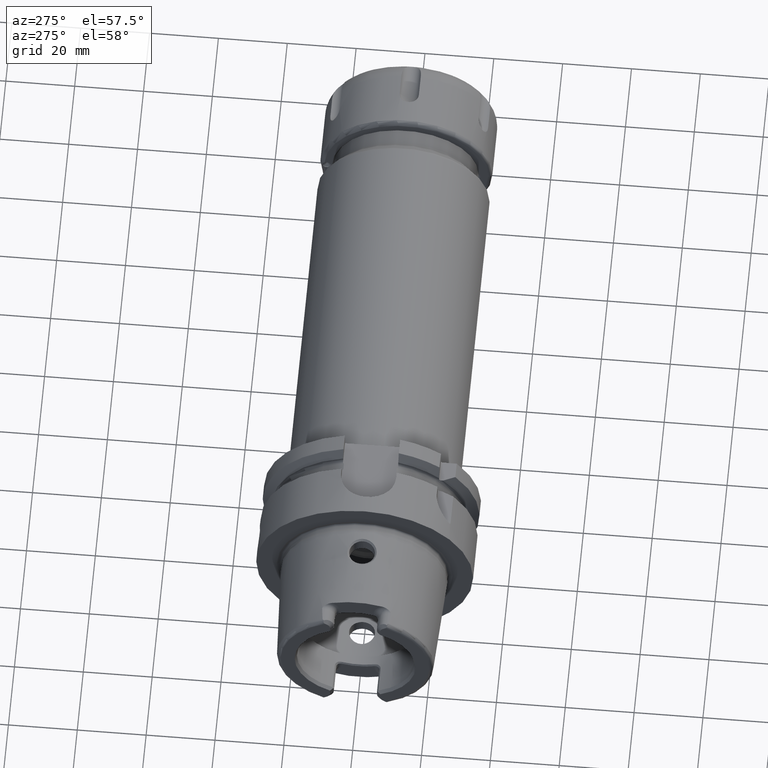
[diagram: clean part render]
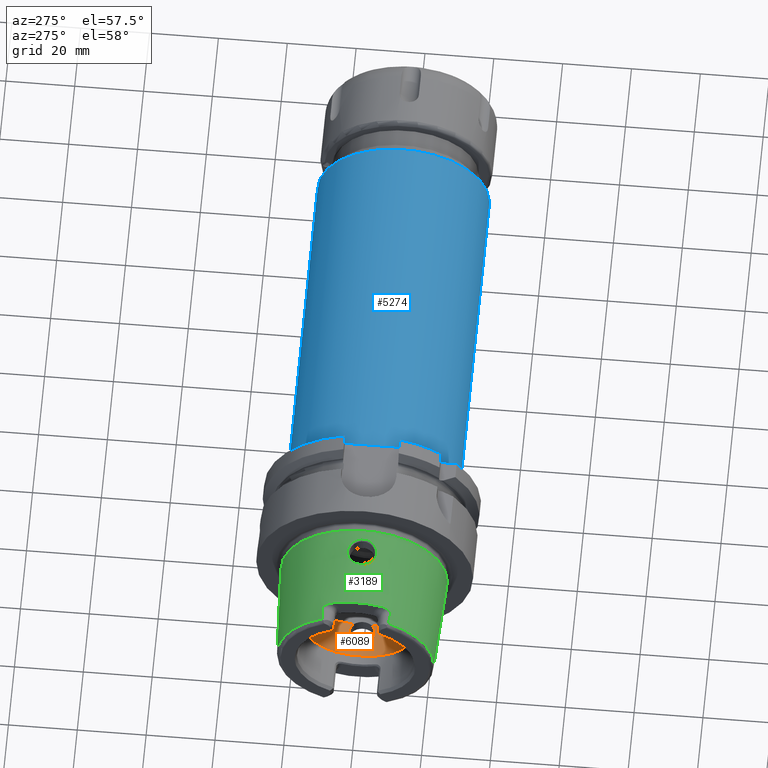
[diagram: same view with three faces highlighted in distinct colors, each labeled with its STEP entity id]
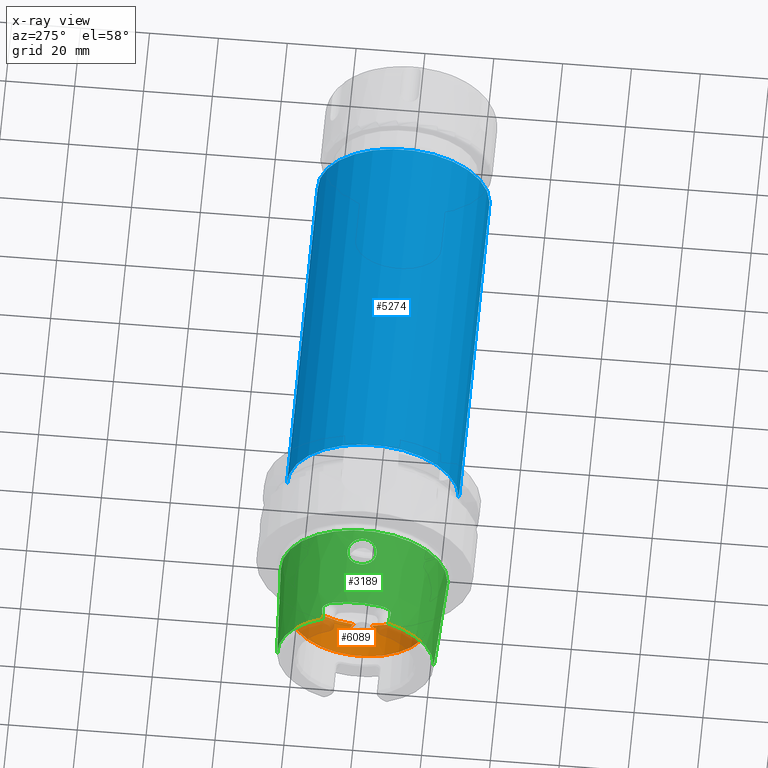
[diagram: x-ray of the same camera — body ghosted, the three highlighted faces saturated]
A machine part, auxiliary view with three faces highlighted in distinct colors.
The next image is the same camera in x-ray (body ghosted, the three faces saturated) — at least one of them is partly hidden behind the body in this view.
Their STEP definitions:

[orange] entity #6089 — the highlighted cylindrical surface (partial cylindrical patch) has radius 20 mm, axis along (1, 0, 0).
#2361=CARTESIAN_POINT('',(-1.275E1,0.E0,-2.E1));
#2362=CARTESIAN_POINT('',(-1.275E1,1.970797777845E-1,-2.E1));
#2363=CARTESIAN_POINT('',(-1.271933909344E1,5.855820587090E-1,
-1.999421722836E1));
#2364=CARTESIAN_POINT('',(-1.258308604776E1,1.156988201512E0,
-1.996912456378E1));
#2365=CARTESIAN_POINT('',(-1.236036877994E1,1.698340885752E0,
-1.993006069771E1));
#2366=CARTESIAN_POINT('',(-1.205588954782E1,2.199795991820E0,
-1.988058916012E1));
#2367=CARTESIAN_POINT('',(-1.167538777807E1,2.649620270025E0,
-1.982521080355E1));
#2368=CARTESIAN_POINT('',(-1.122923157921E1,3.034483606922E0,
-1.976949737947E1));
#2369=CARTESIAN_POINT('',(-1.073042246945E1,3.344039011522E0,
-1.971907966661E1));
#2370=CARTESIAN_POINT('',(-1.018735452757E1,3.573605383178E0,
-1.967844161215E1));
#2371=CARTESIAN_POINT('',(-9.606410769133E0,3.716516435875E0,
-1.965172086194E1));
#2372=CARTESIAN_POINT('',(-9.030535729406E0,3.763361658231E0,
-1.964272645946E1));
#2373=CARTESIAN_POINT('',(-8.506781906634E0,3.728806167728E0,
-1.964936056965E1));
#2374=CARTESIAN_POINT('',(-8.021198772650E0,3.630984566241E0,
-1.966777436361E1));
#2375=CARTESIAN_POINT('',(-7.558768926129E0,3.473542575992E0,
-1.969635625599E1));
#2376=CARTESIAN_POINT('',(-7.115695543339E0,3.254813817759E0,
-1.973391032126E1));
#2377=CARTESIAN_POINT('',(-6.705028812647E0,2.979233365007E0,
-1.977763044789E1));
#2378=CARTESIAN_POINT('',(-6.460595531496E0,2.764184924848E0,
-1.980840609324E1));
#2379=CARTESIAN_POINT('',(-6.344997998398E0,2.648294615690E0,
-1.982388800484E1));
#2381=CARTESIAN_POINT('',(-6.344997998398E0,-2.648294615690E0,
-1.982388800484E1));
#2382=CARTESIAN_POINT('',(-6.462044697935E0,-2.765637761618E0,
-1.980821200720E1));
#2383=CARTESIAN_POINT('',(-6.709671551165E0,-2.983133891878E0,
-1.977705807675E1));
#2384=CARTESIAN_POINT('',(-7.126034905943E0,-3.261089757929E0,
-1.973288133904E1));
#2385=CARTESIAN_POINT('',(-7.575584049692E0,-3.480770468375E0,
-1.969508061270E1));
#2386=CARTESIAN_POINT('',(-8.044905845670E0,-3.637571668188E0,
-1.966655338525E1));
#2387=CARTESIAN_POINT('',(-8.536725270309E0,-3.732857206466E0,
-1.964858692526E1));
#2388=CARTESIAN_POINT('',(-9.064387630539E0,-3.763073563083E0,
-1.964278192788E1));
#2389=CARTESIAN_POINT('',(-9.641487703756E0,-3.710628371547E0,
-1.965284319508E1));
#2390=CARTESIAN_POINT('',(-1.021950864124E1,-3.562603616823E0,
-1.968045141989E1));
#2391=CARTESIAN_POINT('',(-1.075710456701E1,-3.329816746764E0,
-1.972149542356E1));
#2392=CARTESIAN_POINT('',(-1.124928271618E1,-3.019350214938E0,
-1.977181687259E1));
#2393=CARTESIAN_POINT('',(-1.169009647422E1,-2.634399272321E0,
-1.982723525020E1));
#2394=CARTESIAN_POINT('',(-1.206569000544E1,-2.185760381770E0,
-1.988212354227E1));
#2395=CARTESIAN_POINT('',(-1.236610944677E1,-1.686459337541E0,
-1.993104484011E1));
#2396=CARTESIAN_POINT('',(-1.258557429564E1,-1.148507897483E0,
-1.996957873946E1));
#2397=CARTESIAN_POINT('',(-1.271982075329E1,-5.810738531371E-1,
-1.999430846292E1));
#2398=CARTESIAN_POINT('',(-1.275E1,-1.955235226658E-1,-2.E1));
#2399=CARTESIAN_POINT('',(-1.275E1,0.E0,-2.E1));
#2401=CARTESIAN_POINT('',(-6.344997998398E0,0.E0,0.E0));
#2402=DIRECTION('',(-1.E0,0.E0,0.E0));
#2403=DIRECTION('',(0.E0,-1.324147307845E-1,-9.911944002421E-1));
#2404=AXIS2_PLACEMENT_3D('',#2401,#2402,#2403);
#2406=DIRECTION('',(-1.E0,0.E0,0.E0));
#2407=VECTOR('',#2406,1.057256643630E1);
#2408=CARTESIAN_POINT('',(-6.344997998398E0,-2.E1,0.E0));
#2409=LINE('',#2408,#2407);
#2410=DIRECTION('',(-1.E0,0.E0,0.E0));
#2411=VECTOR('',#2410,1.057256643630E1);
#2412=CARTESIAN_POINT('',(-6.344997998398E0,2.E1,0.E0));
#2413=LINE('',#2412,#2411);
#2414=CARTESIAN_POINT('',(-6.344997998398E0,0.E0,0.E0));
#2415=DIRECTION('',(-1.E0,0.E0,0.E0));
#2416=DIRECTION('',(0.E0,1.E0,0.E0));
#2417=AXIS2_PLACEMENT_3D('',#2414,#2415,#2416);
#2419=CARTESIAN_POINT('',(-6.344997998398E0,2.648294615690E0,
-1.982388800484E1));
#2452=CARTESIAN_POINT('',(-6.344997998398E0,-2.648294615690E0,
-1.982388800484E1));
#2635=CARTESIAN_POINT('',(-1.691756443470E1,0.E0,0.E0));
#2636=DIRECTION('',(-1.E0,0.E0,0.E0));
#2637=DIRECTION('',(0.E0,1.E0,0.E0));
#2638=AXIS2_PLACEMENT_3D('',#2635,#2636,#2637);
#2710=CARTESIAN_POINT('',(-6.344997998398E0,2.E1,0.E0));
#2711=VERTEX_POINT('',#2710);
#2712=CARTESIAN_POINT('',(-1.691756443470E1,2.E1,0.E0));
#2713=VERTEX_POINT('',#2712);
#2722=CARTESIAN_POINT('',(-6.344997998398E0,-2.E1,0.E0));
#2723=VERTEX_POINT('',#2722);
#2724=CARTESIAN_POINT('',(-1.691756443470E1,-2.E1,0.E0));
#2725=VERTEX_POINT('',#2724);
#2895=VERTEX_POINT('',#2419);
#2897=VERTEX_POINT('',#2452);
#2898=VERTEX_POINT('',#2361);
#6072=CARTESIAN_POINT('',(-3.41E1,0.E0,0.E0));
#6073=DIRECTION('',(1.E0,0.E0,0.E0));
#6074=DIRECTION('',(0.E0,-1.E0,0.E0));
#6075=AXIS2_PLACEMENT_3D('',#6072,#6073,#6074);
#6076=CYLINDRICAL_SURFACE('',#6075,2.E1);
#6077=ORIENTED_EDGE('',*,*,#6026,.F.);
#6078=ORIENTED_EDGE('',*,*,#5794,.F.);
#6080=ORIENTED_EDGE('',*,*,#6079,.T.);
#6081=ORIENTED_EDGE('',*,*,#6065,.T.);
#6083=ORIENTED_EDGE('',*,*,#6082,.F.);
#6084=ORIENTED_EDGE('',*,*,#6061,.F.);
#6086=ORIENTED_EDGE('',*,*,#6085,.T.);
#6087=EDGE_LOOP('',(#6077,#6078,#6080,#6081,#6083,#6084,#6086));
#6088=FACE_OUTER_BOUND('',#6087,.F.);
#6089=ADVANCED_FACE('',(#6088),#6076,.F.);
#2380=B_SPLINE_CURVE_WITH_KNOTS('',3,(#2361,#2362,#2363,#2364,#2365,#2366,#2367,
#2368,#2369,#2370,#2371,#2372,#2373,#2374,#2375,#2376,#2377,#2378,#2379),
.UNSPECIFIED.,.F.,.F.,(4,1,1,1,1,1,1,1,1,1,1,1,1,1,1,1,4),(0.E0,6.25E-2,1.25E-1,
1.875E-1,2.5E-1,3.125E-1,3.75E-1,4.375E-1,5.E-1,5.625E-1,6.25E-1,6.875E-1,
7.5E-1,8.125E-1,8.75E-1,9.375E-1,1.E0),.UNSPECIFIED.);
#2400=B_SPLINE_CURVE_WITH_KNOTS('',3,(#2381,#2382,#2383,#2384,#2385,#2386,#2387,
#2388,#2389,#2390,#2391,#2392,#2393,#2394,#2395,#2396,#2397,#2398,#2399),
.UNSPECIFIED.,.F.,.F.,(4,1,1,1,1,1,1,1,1,1,1,1,1,1,1,1,4),(0.E0,6.25E-2,1.25E-1,
1.875E-1,2.5E-1,3.125E-1,3.75E-1,4.375E-1,5.E-1,5.625E-1,6.25E-1,6.875E-1,
7.5E-1,8.125E-1,8.75E-1,9.375E-1,1.E0),.UNSPECIFIED.);
#2405=CIRCLE('',#2404,2.E1);
#2418=CIRCLE('',#2417,2.E1);
#2639=CIRCLE('',#2638,2.E1);
#5794=EDGE_CURVE('',#2897,#2898,#2400,.T.);
#6026=EDGE_CURVE('',#2898,#2895,#2380,.T.);
#6061=EDGE_CURVE('',#2711,#2713,#2413,.T.);
#6065=EDGE_CURVE('',#2723,#2725,#2409,.T.);
#6079=EDGE_CURVE('',#2897,#2723,#2405,.T.);
#6082=EDGE_CURVE('',#2713,#2725,#2639,.T.);
#6085=EDGE_CURVE('',#2711,#2895,#2418,.T.);

[blue] entity #5274 — the highlighted cylindrical surface (partial cylindrical patch) has radius 25 mm, axis along (1, 0, 0).
#1966=CARTESIAN_POINT('',(1.287567864376E2,0.E0,0.E0));
#1967=DIRECTION('',(-1.E0,0.E0,0.E0));
#1968=DIRECTION('',(0.E0,-1.E0,0.E0));
#1969=AXIS2_PLACEMENT_3D('',#1966,#1967,#1968);
#1971=CARTESIAN_POINT('',(2.7E1,0.E0,0.E0));
#1972=DIRECTION('',(1.E0,0.E0,0.E0));
#1973=DIRECTION('',(0.E0,1.E0,0.E0));
#1974=AXIS2_PLACEMENT_3D('',#1971,#1972,#1973);
#1991=DIRECTION('',(-1.E0,0.E0,0.E0));
#1992=VECTOR('',#1991,1.017567864376E2);
#1993=CARTESIAN_POINT('',(1.287567864376E2,2.5E1,-1.084437209841E-13));
#1994=LINE('',#1993,#1992);
#2000=DIRECTION('',(-1.E0,0.E0,0.E0));
#2001=VECTOR('',#2000,1.017567864376E2);
#2002=CARTESIAN_POINT('',(1.287567864376E2,-2.5E1,1.021291195379E-13));
#2003=LINE('',#2002,#2001);
#3120=CARTESIAN_POINT('',(2.7E1,-2.5E1,0.E0));
#3121=CARTESIAN_POINT('',(2.7E1,2.5E1,0.E0));
#3122=VERTEX_POINT('',#3120);
#3123=VERTEX_POINT('',#3121);
#3132=CARTESIAN_POINT('',(1.287567864376E2,2.5E1,0.E0));
#3133=CARTESIAN_POINT('',(1.287567864376E2,-2.5E1,0.E0));
#3134=VERTEX_POINT('',#3132);
#3135=VERTEX_POINT('',#3133);
#5260=CARTESIAN_POINT('',(1.971645E1,0.E0,0.E0));
#5261=DIRECTION('',(1.E0,0.E0,0.E0));
#5262=DIRECTION('',(0.E0,-1.E0,0.E0));
#5263=AXIS2_PLACEMENT_3D('',#5260,#5261,#5262);
#5264=CYLINDRICAL_SURFACE('',#5263,2.5E1);
#5266=ORIENTED_EDGE('',*,*,#5265,.F.);
#5268=ORIENTED_EDGE('',*,*,#5267,.T.);
#5269=ORIENTED_EDGE('',*,*,#5254,.F.);
#5271=ORIENTED_EDGE('',*,*,#5270,.F.);
#5272=EDGE_LOOP('',(#5266,#5268,#5269,#5271));
#5273=FACE_OUTER_BOUND('',#5272,.F.);
#5274=ADVANCED_FACE('',(#5273),#5264,.T.);
#1970=CIRCLE('',#1969,2.5E1);
#1975=CIRCLE('',#1974,2.5E1);
#5254=EDGE_CURVE('',#3123,#3122,#1975,.T.);
#5265=EDGE_CURVE('',#3135,#3134,#1970,.T.);
#5267=EDGE_CURVE('',#3135,#3122,#2003,.T.);
#5270=EDGE_CURVE('',#3134,#3123,#1994,.T.);

[green] entity #3189 — the highlighted conical surface has half-angle 2.868 deg.
#2=CARTESIAN_POINT('',(-3.086004306431E1,-9.562027931336E0,2.067E1));
#3=CARTESIAN_POINT('',(-3.049253157278E1,-9.605880711653E0,2.067E1));
#4=CARTESIAN_POINT('',(-2.975362396220E1,-9.693552821268E0,2.067E1));
#5=CARTESIAN_POINT('',(-2.863363692789E1,-9.824971306479E0,2.067E1));
#6=CARTESIAN_POINT('',(-2.787917629619E1,-9.912538799101E0,2.067E1));
#7=CARTESIAN_POINT('',(-2.75E1,-9.956312881929E0,2.067E1));
#9=CARTESIAN_POINT('',(-2.6E1,0.E0,0.E0));
#10=DIRECTION('',(1.E0,0.E0,0.E0));
#11=DIRECTION('',(0.E0,3.233021702202E-1,9.462957818415E-1));
#12=AXIS2_PLACEMENT_3D('',#9,#10,#11);
#14=CARTESIAN_POINT('',(-2.75E1,9.956312881929E0,2.067E1));
#15=CARTESIAN_POINT('',(-2.787916500946E1,9.912540102101E0,2.067E1));
#16=CARTESIAN_POINT('',(-2.863361059702E1,9.824974374327E0,2.067E1));
#17=CARTESIAN_POINT('',(-2.975359777716E1,9.693555915617E0,2.067E1));
#18=CARTESIAN_POINT('',(-3.049252035285E1,9.605882050456E0,2.067E1));
#19=CARTESIAN_POINT('',(-3.086004306431E1,9.562027931336E0,2.067E1));
#21=CARTESIAN_POINT('',(-2.E0,0.E0,0.E0));
#22=DIRECTION('',(1.E0,0.E0,0.E0));
#23=DIRECTION('',(0.E0,1.E0,0.E0));
#24=AXIS2_PLACEMENT_3D('',#21,#22,#23);
#26=CARTESIAN_POINT('',(-1.324941786023E1,-7.219004501044E-9,2.365679941218E1));
#27=CARTESIAN_POINT('',(-1.324962652857E1,2.128419836803E-1,2.365678895818E1));
#28=CARTESIAN_POINT('',(-1.321789572653E1,6.392154004916E-1,2.365279437370E1));
#29=CARTESIAN_POINT('',(-1.306583173353E1,1.295455377947E0,2.363353567605E1));
#30=CARTESIAN_POINT('',(-1.280774848226E1,1.924363159712E0,2.360322882883E1));
#31=CARTESIAN_POINT('',(-1.245682539685E1,2.498002640667E0,2.356658532007E1));
#32=CARTESIAN_POINT('',(-1.202590717647E1,3.003748276320E0,2.352875153285E1));
#33=CARTESIAN_POINT('',(-1.151587453193E1,3.440667161266E0,2.349418467003E1));
#34=CARTESIAN_POINT('',(-1.094488701051E1,3.790928519035E0,2.346872738592E1));
#35=CARTESIAN_POINT('',(-1.032606556195E1,4.047968073685E0,2.345686676513E1));
#36=CARTESIAN_POINT('',(-9.674487886290E0,4.205448144478E0,2.346208039452E1));
#37=CARTESIAN_POINT('',(-9.005382482159E0,4.259666064034E0,2.348629251751E1));
#38=CARTESIAN_POINT('',(-8.334406518885E0,4.208654245636E0,2.352972397238E1));
#39=CARTESIAN_POINT('',(-7.678583145358E0,4.052835118832E0,2.359064506703E1));
#40=CARTESIAN_POINT('',(-7.054746219975E0,3.795297178824E0,2.366546684138E1));
#41=CARTESIAN_POINT('',(-6.478384090661E0,3.441929617339E0,2.374909717224E1));
#42=CARTESIAN_POINT('',(-5.963720829785E0,2.998888105398E0,2.383556837714E1));
#43=CARTESIAN_POINT('',(-5.531697254110E0,2.487245477785E0,2.391660020727E1));
#44=CARTESIAN_POINT('',(-5.183622696567E0,1.910877761534E0,2.398748891792E1));
#45=CARTESIAN_POINT('',(-4.930520871648E0,1.285429316774E0,2.404215083473E1));
#46=CARTESIAN_POINT('',(-4.781592632661E0,6.352567731875E-1,2.407559904029E1));
#47=CARTESIAN_POINT('',(-4.750478792548E0,2.114683342023E-1,2.408258846670E1));
#48=CARTESIAN_POINT('',(-4.750585905229E0,7.197553449570E-9,2.408258310050E1));
#50=CARTESIAN_POINT('',(-4.750585905229E0,7.197553449570E-9,2.408258310050E1));
#51=CARTESIAN_POINT('',(-4.750395627959E0,-2.105069288240E-1,2.408259263313E1));
#52=CARTESIAN_POINT('',(-4.781309836194E0,-6.330630552620E-1,2.407566909301E1));
#53=CARTESIAN_POINT('',(-4.930068182376E0,-1.284334675678E0,2.404224817580E1));
#54=CARTESIAN_POINT('',(-5.183732271360E0,-1.911208248299E0,2.398746160179E1));
#55=CARTESIAN_POINT('',(-5.531554832014E0,-2.486758661206E0,2.391664059803E1));
#56=CARTESIAN_POINT('',(-5.960736101322E0,-2.995606004120E0,2.383611484308E1));
#57=CARTESIAN_POINT('',(-6.472413726219E0,-3.437431533938E0,2.375005151539E1));
#58=CARTESIAN_POINT('',(-7.047774921505E0,-3.791791568104E0,2.366638920783E1));
#59=CARTESIAN_POINT('',(-7.671990993959E0,-4.050736119112E0,2.359134441504E1));
#60=CARTESIAN_POINT('',(-8.327799970975E0,-4.207619640495E0,2.353024681340E1));
#61=CARTESIAN_POINT('',(-8.998662135271E0,-4.259680399888E0,2.348663216787E1));
#62=CARTESIAN_POINT('',(-9.668037445633E0,-4.206488328283E0,2.346222081393E1));
#63=CARTESIAN_POINT('',(-1.031990079178E1,-4.049961979503E0,2.345683302195E1));
#64=CARTESIAN_POINT('',(-1.093870323089E1,-3.794046262990E0,2.346853209808E1));
#65=CARTESIAN_POINT('',(-1.151051650685E1,-3.444658410973E0,2.349386945058E1));
#66=CARTESIAN_POINT('',(-1.202283712979E1,-3.007012911900E0,2.352850073603E1));
#67=CARTESIAN_POINT('',(-1.245609200384E1,-2.499248587590E0,2.356650362943E1));
#68=CARTESIAN_POINT('',(-1.280745559330E1,-1.924878595842E0,2.360319856514E1));
#69=CARTESIAN_POINT('',(-1.306526541006E1,-1.297000138509E0,2.363346880977E1));
#70=CARTESIAN_POINT('',(-1.321765204718E1,-6.412116938996E-1,2.365275767433E1));
#71=CARTESIAN_POINT('',(-1.324954460014E1,-2.136894906074E-1,2.365679306269E1));
#72=CARTESIAN_POINT('',(-1.324941786023E1,-7.219004501044E-9,2.365679941218E1));
#82=CARTESIAN_POINT('',(-2.651259296226E1,-9.27E0,2.104082891384E1));
#83=CARTESIAN_POINT('',(-2.655060528934E1,-9.340723960488E0,2.100758892059E1));
#84=CARTESIAN_POINT('',(-2.663038504623E1,-9.471838743333E0,2.094458948833E1));
#85=CARTESIAN_POINT('',(-2.676092291608E1,-9.637362323001E0,2.086163997968E1));
#86=CARTESIAN_POINT('',(-2.690131837165E1,-9.770899105642E0,2.079157611E1));
#87=CARTESIAN_POINT('',(-2.705226454993E1,-9.871852756963E0,2.073538687848E1));
#88=CARTESIAN_POINT('',(-2.720441776005E1,-9.934823835429E0,2.069678496112E1));
#89=CARTESIAN_POINT('',(-2.735189841416E1,-9.963277454574E0,2.067488149845E1));
#90=CARTESIAN_POINT('',(-2.745092740764E1,-9.961978077101E0,2.067E1));
#91=CARTESIAN_POINT('',(-2.75E1,-9.956312881929E0,2.067E1));
#93=CARTESIAN_POINT('',(-2.6E1,-7.441787718571E0,2.178189005860E1));
#94=CARTESIAN_POINT('',(-2.6E1,-7.574673232080E0,2.173648969253E1));
#95=CARTESIAN_POINT('',(-2.601813511197E1,-7.850865569829E0,2.163846841914E1));
#96=CARTESIAN_POINT('',(-2.610760114915E1,-8.297034966034E0,2.146679982993E1));
#97=CARTESIAN_POINT('',(-2.626559360892E1,-8.768529603152E0,2.127027062942E1));
#98=CARTESIAN_POINT('',(-2.642147165719E1,-9.100463955368E0,2.112051021193E1));
#99=CARTESIAN_POINT('',(-2.651259296226E1,-9.27E0,2.104082891384E1));
#185=CARTESIAN_POINT('',(-3.086004306431E1,0.E0,0.E0));
#186=DIRECTION('',(1.E0,0.E0,0.E0));
#187=DIRECTION('',(0.E0,1.E0,0.E0));
#188=AXIS2_PLACEMENT_3D('',#185,#186,#187);
#196=CARTESIAN_POINT('',(-3.086004306431E1,9.562027931336E0,2.067E1));
#261=CARTESIAN_POINT('',(-3.086004306431E1,0.E0,0.E0));
#262=DIRECTION('',(1.E0,0.E0,0.E0));
#263=DIRECTION('',(0.E0,-4.198553792210E-1,9.075910205259E-1));
#264=AXIS2_PLACEMENT_3D('',#261,#262,#263);
#457=CARTESIAN_POINT('',(-2.651259296226E1,9.27E0,2.104082891384E1));
#458=CARTESIAN_POINT('',(-2.642147038701E1,9.100461592138E0,2.112051132264E1));
#459=CARTESIAN_POINT('',(-2.626559126698E1,8.768524006326E0,2.127027307791E1));
#460=CARTESIAN_POINT('',(-2.610760038346E1,8.297031203136E0,2.146680127908E1));
#461=CARTESIAN_POINT('',(-2.601813556642E1,7.850867870131E0,2.163846753656E1));
#462=CARTESIAN_POINT('',(-2.6E1,7.574674433427E0,2.173648928209E1));
#463=CARTESIAN_POINT('',(-2.6E1,7.441787718571E0,2.178189005860E1));
#497=CARTESIAN_POINT('',(-2.75E1,9.956312881929E0,2.067E1));
#498=CARTESIAN_POINT('',(-2.745017853421E1,9.962064530943E0,2.067E1));
#499=CARTESIAN_POINT('',(-2.734992708669E1,9.963297705486E0,2.067498167063E1));
#500=CARTESIAN_POINT('',(-2.719976747307E1,9.933459927686E0,2.069769932459E1));
#501=CARTESIAN_POINT('',(-2.704939607884E1,9.870085988272E0,2.073638612523E1));
#502=CARTESIAN_POINT('',(-2.690048936387E1,9.770127639355E0,2.079198258623E1));
#503=CARTESIAN_POINT('',(-2.676049508867E1,9.636879759274E0,2.086188624037E1));
#504=CARTESIAN_POINT('',(-2.663016689843E1,9.471495400784E0,2.094475592633E1));
#505=CARTESIAN_POINT('',(-2.655053916050E1,9.340600924250E0,2.100764674716E1));
#506=CARTESIAN_POINT('',(-2.651259296226E1,9.27E0,2.104082891384E1));
#763=DIRECTION('',(-9.987474205320E-1,5.003588692862E-2,0.E0));
#764=VECTOR('',#763,2.889623789861E1);
#765=CARTESIAN_POINT('',(-2.E0,-2.422042414966E1,0.E0));
#766=LINE('',#765,#764);
#772=DIRECTION('',(-9.987474205320E-1,-5.003588692862E-2,0.E0));
#773=VECTOR('',#772,2.889623789861E1);
#774=CARTESIAN_POINT('',(-2.E0,2.422042414966E1,0.E0));
#775=LINE('',#774,#773);
#2688=CARTESIAN_POINT('',(-2.E0,2.422042414966E1,0.E0));
#2689=CARTESIAN_POINT('',(-2.E0,-2.422042414966E1,0.E0));
#2690=VERTEX_POINT('',#2688);
#2691=VERTEX_POINT('',#2689);
#2692=CARTESIAN_POINT('',(-3.086004306431E1,2.277457525750E1,0.E0));
#2693=VERTEX_POINT('',#2692);
#2694=CARTESIAN_POINT('',(-3.086004306431E1,-2.277457525750E1,0.E0));
#2695=VERTEX_POINT('',#2694);
#2733=VERTEX_POINT('',#196);
#2734=CARTESIAN_POINT('',(-3.086004306431E1,-9.562027931336E0,2.067E1));
#2735=VERTEX_POINT('',#2734);
#2745=CARTESIAN_POINT('',(-2.6E1,7.441787718571E0,2.178189005860E1));
#2746=VERTEX_POINT('',#2745);
#2749=CARTESIAN_POINT('',(-2.75E1,9.956312881929E0,2.067E1));
#2750=VERTEX_POINT('',#2749);
#2751=CARTESIAN_POINT('',(-2.6E1,-7.441787718571E0,2.178189005860E1));
#2752=VERTEX_POINT('',#2751);
#2755=CARTESIAN_POINT('',(-2.75E1,-9.956312881929E0,2.067E1));
#2756=VERTEX_POINT('',#2755);
#2757=VERTEX_POINT('',#506);
#2758=VERTEX_POINT('',#82);
#2899=VERTEX_POINT('',#26);
#2900=VERTEX_POINT('',#48);
#3152=CARTESIAN_POINT('',(-1.643002153216E1,0.E0,0.E0));
#3153=DIRECTION('',(1.E0,0.E0,0.E0));
#3154=DIRECTION('',(0.E0,-1.E0,0.E0));
#3155=AXIS2_PLACEMENT_3D('',#3152,#3153,#3154);
#3156=CONICAL_SURFACE('',#3155,2.349749970358E1,2.868042729042E0);
#3158=ORIENTED_EDGE('',*,*,#3157,.T.);
#3160=ORIENTED_EDGE('',*,*,#3159,.F.);
#3162=ORIENTED_EDGE('',*,*,#3161,.F.);
#3164=ORIENTED_EDGE('',*,*,#3163,.F.);
#3166=ORIENTED_EDGE('',*,*,#3165,.F.);
#3168=ORIENTED_EDGE('',*,*,#3167,.F.);
#3170=ORIENTED_EDGE('',*,*,#3169,.T.);
#3172=ORIENTED_EDGE('',*,*,#3171,.F.);
#3174=ORIENTED_EDGE('',*,*,#3173,.F.);
#3176=ORIENTED_EDGE('',*,*,#3175,.T.);
#3178=ORIENTED_EDGE('',*,*,#3177,.T.);
#3180=ORIENTED_EDGE('',*,*,#3179,.F.);
#3181=EDGE_LOOP('',(#3158,#3160,#3162,#3164,#3166,#3168,#3170,#3172,#3174,#3176,
#3178,#3180));
#3182=FACE_OUTER_BOUND('',#3181,.F.);
#3184=ORIENTED_EDGE('',*,*,#3183,.F.);
#3186=ORIENTED_EDGE('',*,*,#3185,.F.);
#3187=EDGE_LOOP('',(#3184,#3186));
#3188=FACE_BOUND('',#3187,.F.);
#3189=ADVANCED_FACE('',(#3182,#3188),#3156,.T.);
#8=B_SPLINE_CURVE_WITH_KNOTS('',3,(#2,#3,#4,#5,#6,#7),.UNSPECIFIED.,.F.,.F.,(4,
1,1,4),(0.E0,3.333333333333E-1,6.666666666667E-1,1.E0),.UNSPECIFIED.);
#13=CIRCLE('',#12,2.301805680272E1);
#20=B_SPLINE_CURVE_WITH_KNOTS('',3,(#14,#15,#16,#17,#18,#19),.UNSPECIFIED.,.F.,
.F.,(4,1,1,4),(0.E0,3.333333333333E-1,6.666666666667E-1,1.E0),.UNSPECIFIED.);
#25=CIRCLE('',#24,2.422042414966E1);
#49=B_SPLINE_CURVE_WITH_KNOTS('',3,(#26,#27,#28,#29,#30,#31,#32,#33,#34,#35,#36,
#37,#38,#39,#40,#41,#42,#43,#44,#45,#46,#47,#48),.UNSPECIFIED.,.F.,.F.,(4,1,1,1,
1,1,1,1,1,1,1,1,1,1,1,1,1,1,1,1,4),(0.E0,5.E-2,1.E-1,1.5E-1,2.E-1,2.5E-1,3.E-1,
3.5E-1,4.E-1,4.5E-1,5.E-1,5.5E-1,6.E-1,6.5E-1,7.E-1,7.5E-1,8.E-1,8.5E-1,9.E-1,
9.5E-1,1.E0),.UNSPECIFIED.);
#73=B_SPLINE_CURVE_WITH_KNOTS('',3,(#50,#51,#52,#53,#54,#55,#56,#57,#58,#59,#60,
#61,#62,#63,#64,#65,#66,#67,#68,#69,#70,#71,#72),.UNSPECIFIED.,.F.,.F.,(4,1,1,1,
1,1,1,1,1,1,1,1,1,1,1,1,1,1,1,1,4),(0.E0,5.E-2,1.E-1,1.5E-1,2.E-1,2.5E-1,3.E-1,
3.5E-1,4.E-1,4.5E-1,5.E-1,5.5E-1,6.E-1,6.5E-1,7.E-1,7.5E-1,8.E-1,8.5E-1,9.E-1,
9.5E-1,1.E0),.UNSPECIFIED.);
#92=B_SPLINE_CURVE_WITH_KNOTS('',3,(#82,#83,#84,#85,#86,#87,#88,#89,#90,#91),
.UNSPECIFIED.,.F.,.F.,(4,1,1,1,1,1,1,4),(0.E0,1.428571428571E-1,
2.857142857143E-1,4.285714285714E-1,5.714285714286E-1,7.142857142857E-1,
8.571428571429E-1,1.E0),.UNSPECIFIED.);
#100=B_SPLINE_CURVE_WITH_KNOTS('',3,(#93,#94,#95,#96,#97,#98,#99),.UNSPECIFIED.,
.F.,.F.,(4,1,1,1,4),(0.E0,2.5E-1,5.E-1,7.5E-1,1.E0),.UNSPECIFIED.);
#189=CIRCLE('',#188,2.277457525750E1);
#265=CIRCLE('',#264,2.277457525750E1);
#464=B_SPLINE_CURVE_WITH_KNOTS('',3,(#457,#458,#459,#460,#461,#462,#463),
.UNSPECIFIED.,.F.,.F.,(4,1,1,1,4),(0.E0,2.5E-1,5.E-1,7.5E-1,1.E0),
.UNSPECIFIED.);
#507=B_SPLINE_CURVE_WITH_KNOTS('',3,(#497,#498,#499,#500,#501,#502,#503,#504,
#505,#506),.UNSPECIFIED.,.F.,.F.,(4,1,1,1,1,1,1,4),(0.E0,1.428571428571E-1,
2.857142857143E-1,4.285714285714E-1,5.714285714286E-1,7.142857142857E-1,
8.571428571429E-1,1.E0),.UNSPECIFIED.);
#3157=EDGE_CURVE('',#2735,#2756,#8,.T.);
#3159=EDGE_CURVE('',#2758,#2756,#92,.T.);
#3161=EDGE_CURVE('',#2752,#2758,#100,.T.);
#3163=EDGE_CURVE('',#2746,#2752,#13,.T.);
#3165=EDGE_CURVE('',#2757,#2746,#464,.T.);
#3167=EDGE_CURVE('',#2750,#2757,#507,.T.);
#3169=EDGE_CURVE('',#2750,#2733,#20,.T.);
#3171=EDGE_CURVE('',#2693,#2733,#189,.T.);
#3173=EDGE_CURVE('',#2690,#2693,#775,.T.);
#3175=EDGE_CURVE('',#2690,#2691,#25,.T.);
#3177=EDGE_CURVE('',#2691,#2695,#766,.T.);
#3179=EDGE_CURVE('',#2735,#2695,#265,.T.);
#3183=EDGE_CURVE('',#2899,#2900,#49,.T.);
#3185=EDGE_CURVE('',#2900,#2899,#73,.T.);